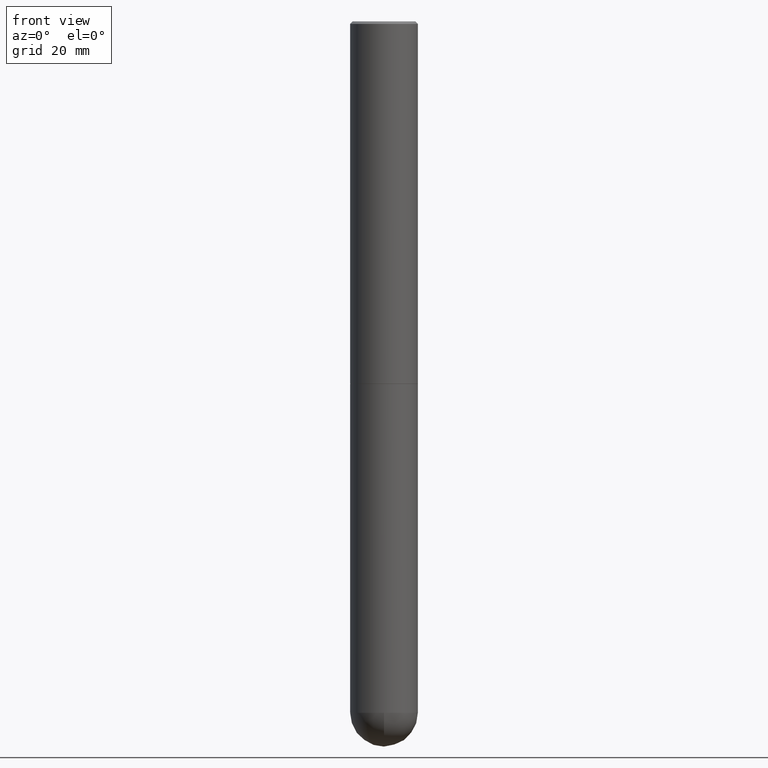
[diagram: clean part render]
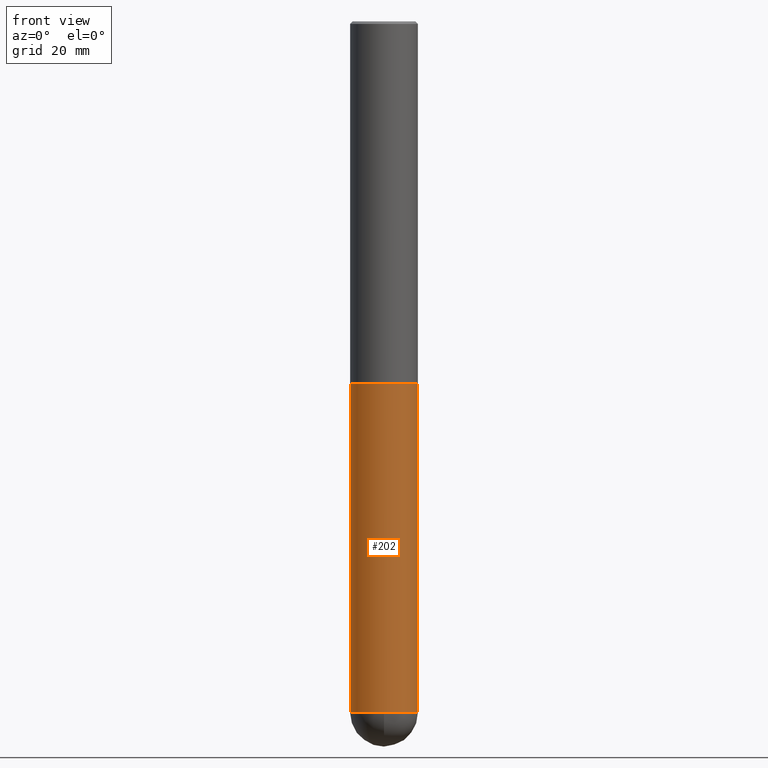
[diagram: same view with one face highlighted and labeled with its STEP entity id]
A machine part, front view. The second image highlights one B-rep face of the part: STEP entity #202.
In plain terms, the highlighted cylindrical surface (edge-blend (fillet) strip) has radius 7.0002 mm, axis along (-0, 0, 1).
Its self-contained STEP definition (entity closure, byte-faithful):
#2 = FACE_OUTER_BOUND ( 'NONE', #232, .T. ) ;
#4 = EDGE_CURVE ( 'NONE', #39, #401, #132, .T. ) ;
#6 = DIRECTION ( 'NONE',  ( -2.445468806185136597E-29, 3.491481338843145583E-15, 1.000000000000000000 ) ) ;
#13 = VERTEX_POINT ( 'NONE', #314 ) ;
#22 = CARTESIAN_POINT ( 'NONE',  ( 1.376774483194169922E-28, -1.965669078955302449E-14, -5.629900000000000126 ) ) ;
#39 = VERTEX_POINT ( 'NONE', #310 ) ;
#45 = DIRECTION ( 'NONE',  ( -2.445468806185136877E-29, 3.491481338843145188E-15, 1.000000000000000000 ) ) ;
#57 = VERTEX_POINT ( 'NONE', #142 ) ;
#72 = CYLINDRICAL_SURFACE ( 'NONE', #120, 0.2756000000000000671 ) ;
#78 = ORIENTED_EDGE ( 'NONE', *, *, #315, .T. ) ;
#81 = VECTOR ( 'NONE', #358, 39.37007874015748143 ) ;
#90 = EDGE_CURVE ( 'NONE', #57, #294, #201, .T. ) ;
#93 = CARTESIAN_POINT ( 'NONE',  ( 7.220735744022852519E-29, -1.030929694920215502E-14, -2.952700000000000102 ) ) ;
#95 = VECTOR ( 'NONE', #45, 39.37007874015748143 ) ;
#97 = LINE ( 'NONE', #222, #81 ) ;
#110 = DIRECTION ( 'NONE',  ( -2.445468806185136597E-29, 3.491481338843145583E-15, 1.000000000000000000 ) ) ;
#120 = AXIS2_PLACEMENT_3D ( 'NONE', #185, #6, #357 ) ;
#132 = LINE ( 'NONE', #264, #95 ) ;
#142 = CARTESIAN_POINT ( 'NONE',  ( -1.958255779754700116E-15, -0.2756000000000199956, -5.629899999999999238 ) ) ;
#164 = CARTESIAN_POINT ( 'NONE',  ( 0.2756000000000000671, -1.690749838334792865E-14, -5.629900000000000126 ) ) ;
#172 = CARTESIAN_POINT ( 'NONE',  ( 1.376774483194169922E-28, -1.965669078955302449E-14, -5.629900000000000126 ) ) ;
#185 = CARTESIAN_POINT ( 'NONE',  ( 0.000000000000000000, 0.000000000000000000, 0.000000000000000000 ) ) ;
#193 = ORIENTED_EDGE ( 'NONE', *, *, #90, .T. ) ;
#201 = CIRCLE ( 'NONE', #320, 0.2756000000000000671 ) ;
#202 = ADVANCED_FACE ( 'NONE', ( #2 ), #72, .T. ) ;
#206 = DIRECTION ( 'NONE',  ( 1.000000000000000000, -6.982962677686264344E-15, 0.000000000000000000 ) ) ;
#222 = CARTESIAN_POINT ( 'NONE',  ( 0.2756000000000000671, -1.924504513970335743E-15, 1.343874319409360268E-29 ) ) ;
#230 = CARTESIAN_POINT ( 'NONE',  ( -0.2756000000000000116, -1.302473808962275237E-14, -2.952700000000000102 ) ) ;
#232 = EDGE_LOOP ( 'NONE', ( #298, #78, #193, #287, #256 ) ) ;
#243 = EDGE_CURVE ( 'NONE', #294, #13, #97, .T. ) ;
#247 = DIRECTION ( 'NONE',  ( -2.445468806185136597E-29, 3.491481338843145583E-15, 1.000000000000000000 ) ) ;
#256 = ORIENTED_EDGE ( 'NONE', *, *, #403, .F. ) ;
#264 = CARTESIAN_POINT ( 'NONE',  ( -0.2756000000000000671, 1.958255779754836589E-15, -1.355658510874252287E-29 ) ) ;
#276 = CIRCLE ( 'NONE', #340, 0.2756000000000000671 ) ;
#287 = ORIENTED_EDGE ( 'NONE', *, *, #243, .T. ) ;
#294 = VERTEX_POINT ( 'NONE', #164 ) ;
#295 = AXIS2_PLACEMENT_3D ( 'NONE', #93, #408, #385 ) ;
#298 = ORIENTED_EDGE ( 'NONE', *, *, #4, .F. ) ;
#310 = CARTESIAN_POINT ( 'NONE',  ( -0.2756000000000000671, -1.302473808962275553E-14, -5.629900000000000126 ) ) ;
#314 = CARTESIAN_POINT ( 'NONE',  ( 0.2756000000000000116, -1.223380146317248997E-14, -2.952700000000000102 ) ) ;
#315 = EDGE_CURVE ( 'NONE', #39, #57, #276, .T. ) ;
#320 = AXIS2_PLACEMENT_3D ( 'NONE', #22, #110, #378 ) ;
#333 = CIRCLE ( 'NONE', #295, 0.2756000000000000116 ) ;
#340 = AXIS2_PLACEMENT_3D ( 'NONE', #172, #247, #206 ) ;
#357 = DIRECTION ( 'NONE',  ( 1.000000000000000000, -6.982962677686267499E-15, 4.876176775795935793E-29 ) ) ;
#358 = DIRECTION ( 'NONE',  ( -2.445468806185136877E-29, 3.491481338843145188E-15, 1.000000000000000000 ) ) ;
#378 = DIRECTION ( 'NONE',  ( 1.000000000000000000, -6.982962677686264344E-15, 0.000000000000000000 ) ) ;
#385 = DIRECTION ( 'NONE',  ( 1.000000000000000000, -6.982962677686265922E-15, 0.000000000000000000 ) ) ;
#401 = VERTEX_POINT ( 'NONE', #230 ) ;
#403 = EDGE_CURVE ( 'NONE', #401, #13, #333, .T. ) ;
#408 = DIRECTION ( 'NONE',  ( -2.445468806185136597E-29, 3.491481338843145583E-15, 1.000000000000000000 ) ) ;